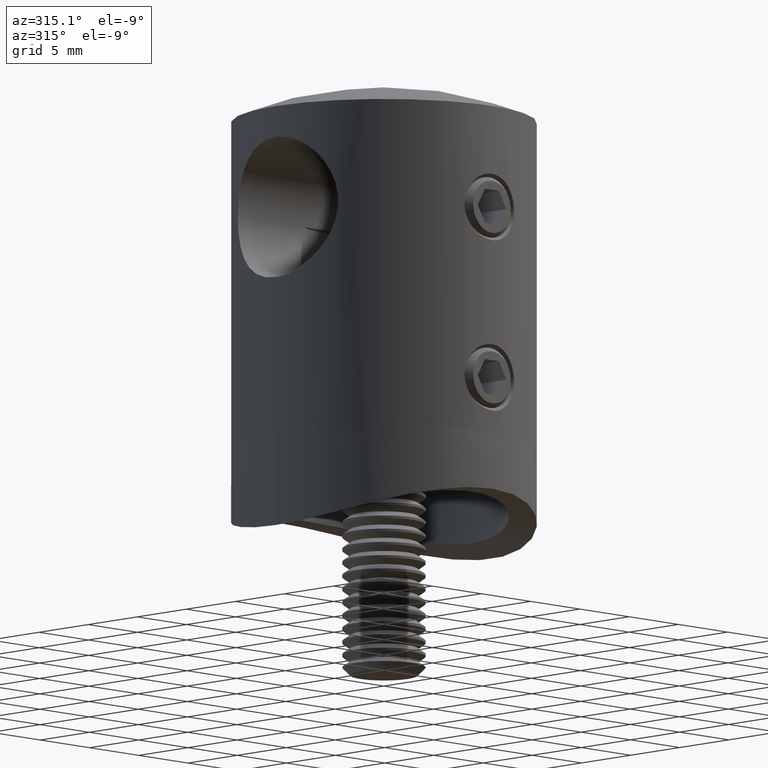
[diagram: clean part render]
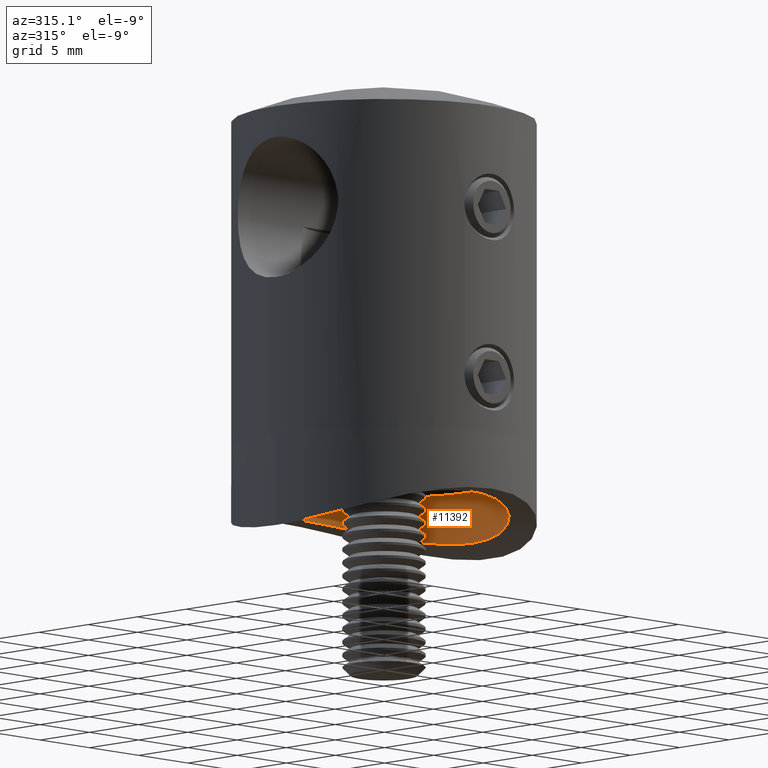
[diagram: same view with one face highlighted and labeled with its STEP entity id]
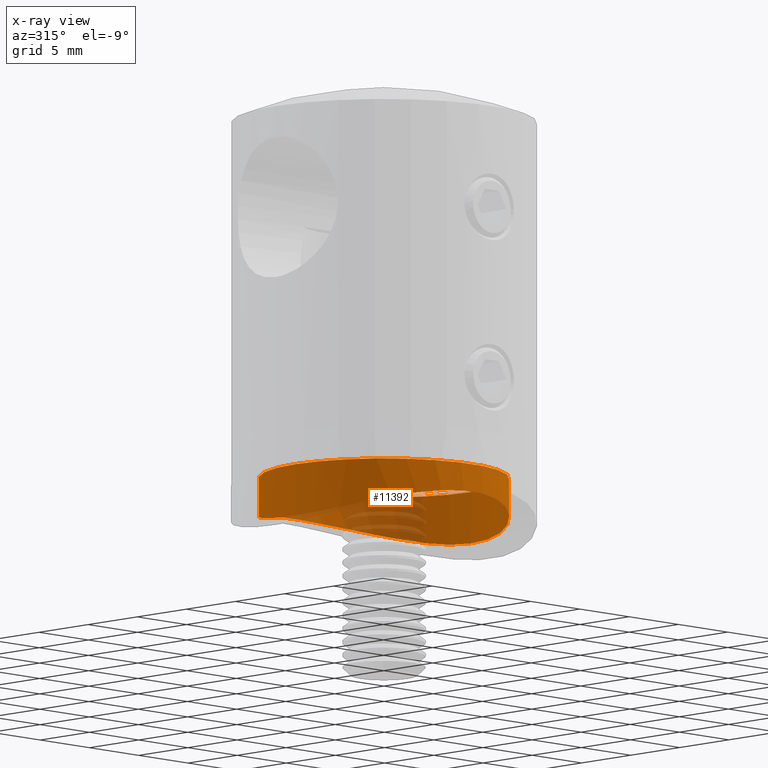
[diagram: x-ray of the same camera — body ghosted, the highlighted face saturated]
A machine part, auxiliary view. The second image highlights one B-rep face of the part: STEP entity #11392.
The next image is the same camera in x-ray: the body ghosted, the highlighted face saturated — about 19% of this face is hidden behind the body in this view.
In plain terms, the highlighted cylindrical surface (bore or boss wall) has radius 9 mm, axis along (-0, -0, -1).
Its self-contained STEP definition (entity closure, byte-faithful):
#189 = DIRECTION ( 'NONE',  ( -0.0000000000000000000, -0.0000000000000000000, -1.000000000000000000 ) ) ;
#199 = CARTESIAN_POINT ( 'NONE',  ( -5.955481066850367700, 6.772949348052264000, -4.841934236872190500 ) ) ;
#276 = CARTESIAN_POINT ( 'NONE',  ( -2.917733927521076500, 8.519060988494834100, -4.275214090765128800 ) ) ;
#357 = CARTESIAN_POINT ( 'NONE',  ( 8.705901119531875000, -2.358470419391077500, -5.723444286782619600 ) ) ;
#434 = CARTESIAN_POINT ( 'NONE',  ( 8.069453861627772900, -3.996355480198275200, -5.487570248137029000 ) ) ;
#552 = CIRCLE ( 'NONE', #4101, 8.999999999999998200 ) ;
#729 = CARTESIAN_POINT ( 'NONE',  ( -8.999999999999998200, 0.0000000000000000000, -5.839678717162483300 ) ) ;
#1617 = CARTESIAN_POINT ( 'NONE',  ( -5.952661801843511600, -6.775232575217426500, -4.841242703613031200 ) ) ;
#1697 = CARTESIAN_POINT ( 'NONE',  ( -2.351721421240856400, -8.692363999212457100, -4.213088095409313300 ) ) ;
#1775 = CARTESIAN_POINT ( 'NONE',  ( -8.419670604379318100, -3.193089259846869400, -5.614933931759304100 ) ) ;
#1935 = CARTESIAN_POINT ( 'NONE',  ( 4.001728315777034700, 8.066765406957495400, -4.432402174724337000 ) ) ;
#2013 = CARTESIAN_POINT ( 'NONE',  ( 8.882115221764351500, -1.482161746522389300, -5.792606766629381500 ) ) ;
#2088 = CARTESIAN_POINT ( 'NONE',  ( 8.985262616755441900, -0.5942851337835611800, -5.833743530354812600 ) ) ;
#2164 = CARTESIAN_POINT ( 'NONE',  ( 8.707357408751676100, 2.352902298193428900, -5.724009966248377000 ) ) ;
#2226 = CARTESIAN_POINT ( 'NONE',  ( 4.770326956018101900, 7.637333640570379800, -4.574534365057011200 ) ) ;
#3352 = CARTESIAN_POINT ( 'NONE',  ( -8.694337786926587000, -2.344497970514962200, -5.719141017561555400 ) ) ;
#3508 = CARTESIAN_POINT ( 'NONE',  ( -1.187097216402585300, -8.941112256603400300, -4.122128428594585600 ) ) ;
#3743 = CARTESIAN_POINT ( 'NONE',  ( -7.156723709875413100, 5.488278765217980700, -5.182273233512183300 ) ) ;
#3818 = CARTESIAN_POINT ( 'NONE',  ( 8.067936344374585300, 3.999436646844154000, -5.487030815150164100 ) ) ;
#3899 = CARTESIAN_POINT ( 'NONE',  ( 7.790570761488595500, -4.515966115826064000, -5.390618970679129000 ) ) ;
#3977 = CARTESIAN_POINT ( 'NONE',  ( 8.195380129416308900, 3.731275948257880300, -5.532764901327007000 ) ) ;
#4051 = CARTESIAN_POINT ( 'NONE',  ( 6.161363320520977500, -6.566798266884279500, -4.898215239517438300 ) ) ;
#4101 = AXIS2_PLACEMENT_3D ( 'NONE', #10964, #189, #7496 ) ;
#4154 = FACE_OUTER_BOUND ( 'NONE', #15565, .T. ) ;
#5306 = CARTESIAN_POINT ( 'NONE',  ( 0.2906703609102728200, -9.000195386762026600, -4.099927185071580400 ) ) ;
#5464 = EDGE_CURVE ( 'NONE', #10314, #10314, #10794, .T. ) ;
#5531 = CARTESIAN_POINT ( 'NONE',  ( -8.422403218693784100, 3.185992612804383400, -5.615948855268447600 ) ) ;
#5609 = CARTESIAN_POINT ( 'NONE',  ( 2.913076722084210900, -8.536234980370069900, -4.269928068814183000 ) ) ;
#5688 = CARTESIAN_POINT ( 'NONE',  ( 0.5906865844048850800, 9.000163910465412100, -4.099938915356520200 ) ) ;
#5765 = CARTESIAN_POINT ( 'NONE',  ( 1.185638266595394000, -8.926579602596486800, -4.127281001638810000 ) ) ;
#5840 = CARTESIAN_POINT ( 'NONE',  ( 1.193415101730544800, 8.940075068365306500, -4.122511259469772100 ) ) ;
#6077 = CARTESIAN_POINT ( 'NONE',  ( -8.940442806010899800, 1.189288021549053600, -5.815509713986338100 ) ) ;
#7035 = CARTESIAN_POINT ( 'NONE',  ( -4.521487152679823900, -7.804139365119503700, -4.521749741492953100 ) ) ;
#7056 = EDGE_CURVE ( 'NONE', #19602, #19602, #552, .T. ) ;
#7351 = CARTESIAN_POINT ( 'NONE',  ( 8.927272823039375600, 1.179906985632502200, -5.810586266342657100 ) ) ;
#7428 = CARTESIAN_POINT ( 'NONE',  ( 8.195336370065385600, -3.731252927472446400, -5.532752145243343000 ) ) ;
#7496 = DIRECTION ( 'NONE',  ( -1.000000000000000000, 0.0000000000000000000, 0.0000000000000000000 ) ) ;
#7506 = CARTESIAN_POINT ( 'NONE',  ( -8.767329222801745200, 2.054365885241586900, -5.747549438134414300 ) ) ;
#7584 = CARTESIAN_POINT ( 'NONE',  ( 4.010437584248245800, -8.078967385235042500, -4.428869544111807800 ) ) ;
#7664 = CARTESIAN_POINT ( 'NONE',  ( -3.194648966316182100, 8.419054753470906100, -4.310665505388048900 ) ) ;
#7982 = CARTESIAN_POINT ( 'NONE',  ( -9.000000000000001800, 0.6005012153812466800, -5.839678717162483300 ) ) ;
#8862 = CARTESIAN_POINT ( 'NONE',  ( -3.195005881903785600, -8.418891798475938200, -4.310721501395904400 ) ) ;
#8958 = FACE_OUTER_BOUND ( 'NONE', #10541, .T. ) ;
#9169 = CARTESIAN_POINT ( 'NONE',  ( 5.496279477316528900, 7.150555889302125000, -4.728559119349281300 ) ) ;
#9254 = CARTESIAN_POINT ( 'NONE',  ( -2.351814618608055100, 8.692326466326703000, -4.213101309337846900 ) ) ;
#9332 = CARTESIAN_POINT ( 'NONE',  ( 7.788603845762029500, 4.519373903847889700, -5.389947220072206100 ) ) ;
#9403 = CARTESIAN_POINT ( 'NONE',  ( 7.637359333342634400, 4.770311581830537100, -5.338813908932394300 ) ) ;
#9479 = CARTESIAN_POINT ( 'NONE',  ( -6.780315631945662800, 5.947093200891345100, -5.067407016476285400 ) ) ;
#10314 = VERTEX_POINT ( 'NONE', #729 ) ;
#10541 = EDGE_LOOP ( 'NONE', ( #21799 ) ) ;
#10586 = CARTESIAN_POINT ( 'NONE',  ( -6.765097472201769200, -5.942992827749921300, -5.066090446804200700 ) ) ;
#10659 = CARTESIAN_POINT ( 'NONE',  ( -2.918327195086877400, -8.518870342970609900, -4.275282192805836900 ) ) ;
#10794 = B_SPLINE_CURVE_WITH_KNOTS ( 'NONE', 3,
 ( #23299, #14132, #21420, #12406, #3352, #12479, #1775, #17754, #17985, #14210, #19532, #10586, #19774, #1617, #10817, #7035, #19614, #8862, #10659, #1697, #14293, #3508, #16106, #5306, #11126, #5765, #12721, #11202, #5609, #7584, #16334, #20151, #21730, #18138, #4051, #16570, #12796, #18214, #3899, #434, #7428, #20077, #357, #2013, #12956, #2088, #18365, #14770, #7351, #14607, #2164, #13033, #3977, #3818, #9332, #9403, #14842, #21956, #21802, #9169, #2226, #10973, #1935, #16415, #20000, #16640, #5840, #5688, #11282, #21879, #18443, #9254, #276, #7664, #11049, #12879, #14532, #14693, #20228, #199, #9479, #3743, #18291, #22036, #5531, #19922, #16493, #7506, #6077, #7982, #15228 ),
 .UNSPECIFIED., .T., .F.,
 ( 4, 2, 2, 2, 2, 2, 2, 2, 2, 2, 2, 2, 2, 2, 2, 2, 2, 2, 2, 2, 2, 2, 2, 1, 2, 2, 2, 2, 2, 2, 2, 2, 2, 2, 2, 2, 2, 2, 2, 2, 2, 2, 2, 2, 2, 4 ),
 ( 0.0000000000000000000, 0.001774529102768363400, 0.002661793654152544600, 0.003549058205536726000, 0.005323587308305088300, 0.006210851859689271000, 0.007098116411073453700, 0.008872645513841814800, 0.01064717461661017500, 0.01153443916799435500, 0.01242170371937853500, 0.01419623282214689200, 0.01508349737353107400, 0.01597076192491525200, 0.01774529102768361200, 0.01951982013045197200, 0.02040708468183615200, 0.02129434923322032900, 0.02306887833598868600, 0.02395614288737286600, 0.02484340743875704200, 0.02661793654152539900, 0.02750520109290957200, 0.02839246564429374600, 0.02927973019567792600, 0.03016699474706210200, 0.03194152384983045500, 0.03282878840121462900, 0.03371605295259880200, 0.03549058205536715500, 0.03726511115813550800, 0.03815237570951968100, 0.03903964026090385500, 0.04081416936367221500, 0.04258869846644057500, 0.04436322756920892800, 0.04525049212059310100, 0.04613775667197728100, 0.04702502122336145500, 0.04791228577474563500, 0.04968681487751399500, 0.05146134398028234800, 0.05323587308305070800, 0.05412313763443488800, 0.05501040218581906800, 0.05678493128858742900 ),
 .UNSPECIFIED. ) ;
#10817 = CARTESIAN_POINT ( 'NONE',  ( -5.502073847852488000, -7.146720973623800400, -4.729777004140325800 ) ) ;
#10964 = CARTESIAN_POINT ( 'NONE',  ( 0.0000000000000000000, 0.0000000000000000000, -2.099999999999999600 ) ) ;
#10973 = CARTESIAN_POINT ( 'NONE',  ( 4.519950738165869500, 7.788233366350268300, -4.525290496943454400 ) ) ;
#11049 = CARTESIAN_POINT ( 'NONE',  ( -3.736767436266001500, 8.192852622083968600, -4.389277312072781700 ) ) ;
#11126 = CARTESIAN_POINT ( 'NONE',  ( 0.5900211280211912200, -8.985623883136636200, -4.105369436630432700 ) ) ;
#11202 = CARTESIAN_POINT ( 'NONE',  ( 2.348900928940129700, -8.708168648184193100, -4.207475028667589700 ) ) ;
#11282 = CARTESIAN_POINT ( 'NONE',  ( -0.5956709152723410600, 8.999835399435847100, -4.100061341823122900 ) ) ;
#11392 = ADVANCED_FACE ( 'NONE', ( #8958, #4154 ), #21019, .F. ) ;
#11670 = CARTESIAN_POINT ( 'NONE',  ( -8.999999999999998200, 0.0000000000000000000, -2.099999999999999600 ) ) ;
#11834 = AXIS2_PLACEMENT_3D ( 'NONE', #22437, #17942, #12364 ) ;
#12364 = DIRECTION ( 'NONE',  ( -1.000000000000000000, 0.0000000000000000000, 0.0000000000000000000 ) ) ;
#12406 = CARTESIAN_POINT ( 'NONE',  ( -8.766555754892122500, -2.057810665755193100, -5.747247263574445600 ) ) ;
#12479 = CARTESIAN_POINT ( 'NONE',  ( -8.520884832321961300, -2.912507847411545600, -5.652972812469067200 ) ) ;
#12721 = CARTESIAN_POINT ( 'NONE',  ( 1.479380313472691100, -8.882500666079790700, -4.143602622314364000 ) ) ;
#12796 = CARTESIAN_POINT ( 'NONE',  ( 7.149256462661933000, -5.498200193310328400, -5.179933283928610500 ) ) ;
#12879 = CARTESIAN_POINT ( 'NONE',  ( -4.001970359664289500, 8.066656255544257800, -4.432439967349232300 ) ) ;
#12956 = CARTESIAN_POINT ( 'NONE',  ( 8.926573675138055100, -1.185074484845290800, -5.810307915942676300 ) ) ;
#13033 = CARTESIAN_POINT ( 'NONE',  ( 8.534879596344312700, 2.915910311827767400, -5.657159668338467300 ) ) ;
#14132 = CARTESIAN_POINT ( 'NONE',  ( -8.999999999999994700, -0.6005012153812484500, -5.839678717162481500 ) ) ;
#14210 = CARTESIAN_POINT ( 'NONE',  ( -7.313600916143589500, -5.253298762340662600, -5.233415069170491500 ) ) ;
#14293 = CARTESIAN_POINT ( 'NONE',  ( -2.060525594262084100, -8.765980054847519300, -4.186293804418925300 ) ) ;
#14532 = CARTESIAN_POINT ( 'NONE',  ( -4.520702814488417200, 7.787808161981098800, -4.525430905248642300 ) ) ;
#14607 = CARTESIAN_POINT ( 'NONE',  ( 8.882866956332655700, 1.477575785954844200, -5.792904803888850700 ) ) ;
#14693 = CARTESIAN_POINT ( 'NONE',  ( -4.775166543345733300, 7.634395306813172700, -4.575491253734487200 ) ) ;
#14770 = CARTESIAN_POINT ( 'NONE',  ( 8.985677232262688100, 0.5882050912035665700, -5.833909942971249800 ) ) ;
#14842 = CARTESIAN_POINT ( 'NONE',  ( 7.149845538636008700, 5.497292922067794400, -5.180127188947302800 ) ) ;
#15228 = CARTESIAN_POINT ( 'NONE',  ( -8.999999999999998200, -8.673617379884035500E-016, -5.839678717162482400 ) ) ;
#15565 = EDGE_LOOP ( 'NONE', ( #19442 ) ) ;
#16106 = CARTESIAN_POINT ( 'NONE',  ( -0.5993049066174209700, -8.999603250328354100, -4.100147856992379900 ) ) ;
#16334 = CARTESIAN_POINT ( 'NONE',  ( 4.527344692388734200, -7.800255706479116000, -4.522982485441202600 ) ) ;
#16415 = CARTESIAN_POINT ( 'NONE',  ( 3.732413406636363900, 8.194897769588534300, -4.388576885281986000 ) ) ;
#16493 = CARTESIAN_POINT ( 'NONE',  ( -8.695549330617566900, 2.339791131305400700, -5.719611579249654000 ) ) ;
#16570 = CARTESIAN_POINT ( 'NONE',  ( 6.780329729896142700, -5.947106736518968300, -5.067406818404594800 ) ) ;
#16640 = CARTESIAN_POINT ( 'NONE',  ( 2.352093982517698700, 8.707286358587818900, -4.207795308523482300 ) ) ;
#17754 = CARTESIAN_POINT ( 'NONE',  ( -8.079656784023901700, -4.008220887472560000, -5.490388354546575500 ) ) ;
#17942 = DIRECTION ( 'NONE',  ( -0.0000000000000000000, -0.0000000000000000000, -1.000000000000000000 ) ) ;
#17985 = CARTESIAN_POINT ( 'NONE',  ( -7.803055254637836700, -4.522825851298528700, -5.392778173017484600 ) ) ;
#18138 = CARTESIAN_POINT ( 'NONE',  ( 5.942811789027445900, -6.765291272938850600, -4.841455505128040600 ) ) ;
#18214 = CARTESIAN_POINT ( 'NONE',  ( 7.637860410970756900, -4.769549944825334000, -5.338978091194833900 ) ) ;
#18291 = CARTESIAN_POINT ( 'NONE',  ( -7.804986782564452800, 4.519079484610733400, -5.393471528755168400 ) ) ;
#18365 = CARTESIAN_POINT ( 'NONE',  ( 9.014528821124315500, -0.003266750181467113200, -5.845530242525698300 ) ) ;
#18443 = CARTESIAN_POINT ( 'NONE',  ( -2.061066377919867700, 8.765889289412577100, -4.186327275800009000 ) ) ;
#19442 = ORIENTED_EDGE ( 'NONE', *, *, #7056, .F. ) ;
#19532 = CARTESIAN_POINT ( 'NONE',  ( -7.137023358012964300, -5.490774548846016700, -5.177871715718736400 ) ) ;
#19602 = VERTEX_POINT ( 'NONE', #11670 ) ;
#19614 = CARTESIAN_POINT ( 'NONE',  ( -4.006012131078700900, -8.080536715158922700, -4.428311619825038300 ) ) ;
#19774 = CARTESIAN_POINT ( 'NONE',  ( -6.569289279463160500, -6.158646613224688900, -5.009682908041043900 ) ) ;
#19922 = CARTESIAN_POINT ( 'NONE',  ( -8.523471093179329800, 2.904761818648027700, -5.653951206575491100 ) ) ;
#20000 = CARTESIAN_POINT ( 'NONE',  ( 2.914316582453931200, 8.535560674344605300, -4.270155328947893700 ) ) ;
#20077 = CARTESIAN_POINT ( 'NONE',  ( 8.533226243509590200, -2.920136364321387100, -5.656547339352299800 ) ) ;
#20151 = CARTESIAN_POINT ( 'NONE',  ( 5.254691621820182200, -7.312552613288528600, -4.677300886734611800 ) ) ;
#20228 = CARTESIAN_POINT ( 'NONE',  ( -5.506321885039311900, 7.143195935143809000, -4.730832521683521600 ) ) ;
#21019 = CYLINDRICAL_SURFACE ( 'NONE', #11834, 8.999999999999998200 ) ;
#21420 = CARTESIAN_POINT ( 'NONE',  ( -8.940514080942433500, -1.189767257652660600, -5.815534772367986000 ) ) ;
#21730 = CARTESIAN_POINT ( 'NONE',  ( 5.489310063391047700, -7.138182751615425500, -4.730977011020257800 ) ) ;
#21799 = ORIENTED_EDGE ( 'NONE', *, *, #5464, .F. ) ;
#21802 = CARTESIAN_POINT ( 'NONE',  ( 5.947560557959440600, 6.780348492168895900, -4.839847025014655900 ) ) ;
#21879 = CARTESIAN_POINT ( 'NONE',  ( -1.184475436480215200, 8.941602570797618600, -4.121948352451481100 ) ) ;
#21956 = CARTESIAN_POINT ( 'NONE',  ( 6.780162620850766200, 5.947772448628976200, -5.067288041783635700 ) ) ;
#22036 = CARTESIAN_POINT ( 'NONE',  ( -8.081491491131696800, 4.004896366598776700, -5.491032886329954900 ) ) ;
#22437 = CARTESIAN_POINT ( 'NONE',  ( 0.0000000000000000000, 0.0000000000000000000, -2.100000000000000100 ) ) ;
#23299 = CARTESIAN_POINT ( 'NONE',  ( -8.999999999999998200, -8.673617379884035500E-016, -5.839678717162482400 ) ) ;